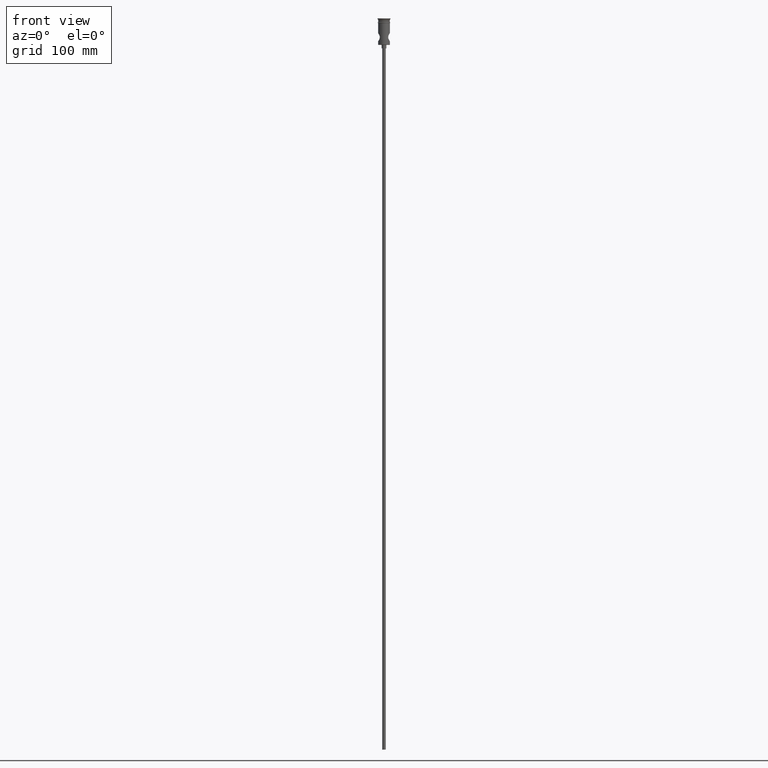
[diagram: clean part render]
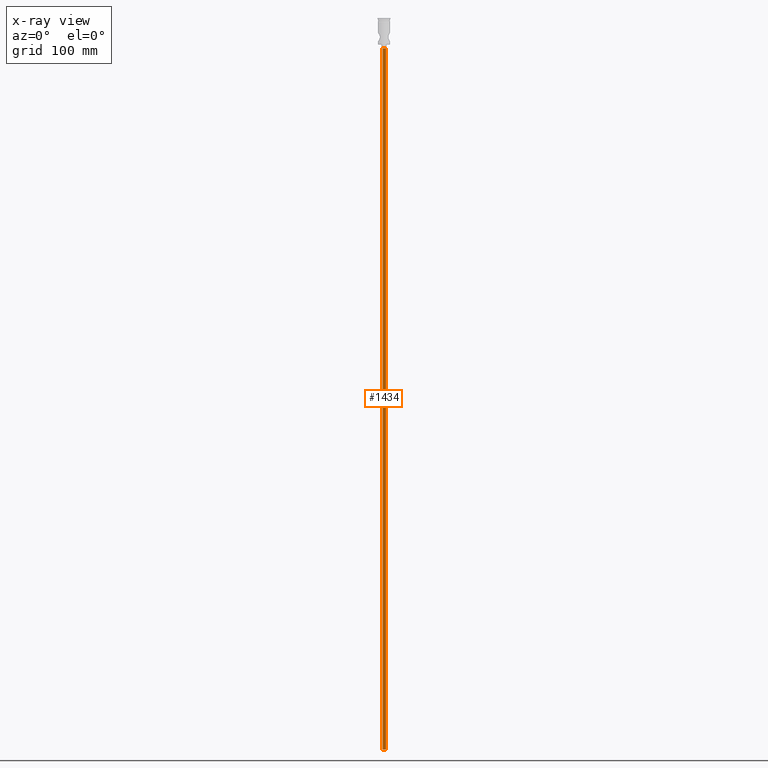
[diagram: x-ray — body ghosted, one internal face saturated and labeled with its STEP entity id]
A machine part, front view, then the same camera in x-ray: the body is ghosted and one INTERNAL B-rep face — a face not visible from any outside direction — is saturated and labeled: STEP entity #1434.
In plain terms, the highlighted cylindrical surface (edge-blend (fillet) strip) has radius 1.5 mm, axis along (-0, -0, 1).
Its self-contained STEP definition (entity closure, byte-faithful):
#10 = VECTOR ( 'NONE', #356, 1000.000000000000000 ) ;
#76 = ORIENTED_EDGE ( 'NONE', *, *, #539, .F. ) ;
#150 = EDGE_CURVE ( 'NONE', #643, #1300, #472, .T. ) ;
#155 = CARTESIAN_POINT ( 'NONE',  ( 0.000000000000000000, 0.000000000000000000, -622.4999999999998863 ) ) ;
#163 = CARTESIAN_POINT ( 'NONE',  ( -1.500000000000000222, 1.836970198721030181E-16, -622.4999999999998863 ) ) ;
#195 = AXIS2_PLACEMENT_3D ( 'NONE', #983, #631, #540 ) ;
#207 = ORIENTED_EDGE ( 'NONE', *, *, #1020, .T. ) ;
#224 = CARTESIAN_POINT ( 'NONE',  ( 1.500000000000000222, 0.000000000000000000, -622.4999999999998863 ) ) ;
#227 = EDGE_CURVE ( 'NONE', #643, #1051, #1150, .T. ) ;
#259 = CARTESIAN_POINT ( 'NONE',  ( 1.500000000000000222, 0.000000000000000000, -25.50000000000000000 ) ) ;
#266 = ORIENTED_EDGE ( 'NONE', *, *, #227, .T. ) ;
#300 = LINE ( 'NONE', #742, #10 ) ;
#356 = DIRECTION ( 'NONE',  ( -0.000000000000000000, -0.000000000000000000, 1.000000000000000000 ) ) ;
#396 = CARTESIAN_POINT ( 'NONE',  ( -1.500000000000000222, 1.836970198721030181E-16, -622.4999999999998863 ) ) ;
#472 = CIRCLE ( 'NONE', #1174, 1.500000000000000222 ) ;
#492 = DIRECTION ( 'NONE',  ( -0.000000000000000000, -0.000000000000000000, 1.000000000000000000 ) ) ;
#539 = EDGE_CURVE ( 'NONE', #1300, #1417, #300, .T. ) ;
#540 = DIRECTION ( 'NONE',  ( -1.000000000000000000, 0.000000000000000000, 0.000000000000000000 ) ) ;
#603 = DIRECTION ( 'NONE',  ( -0.000000000000000000, -0.000000000000000000, 1.000000000000000000 ) ) ;
#608 = DIRECTION ( 'NONE',  ( -1.000000000000000000, 0.000000000000000000, 0.000000000000000000 ) ) ;
#631 = DIRECTION ( 'NONE',  ( 0.000000000000000000, 0.000000000000000000, -1.000000000000000000 ) ) ;
#643 = VERTEX_POINT ( 'NONE', #163 ) ;
#718 = EDGE_LOOP ( 'NONE', ( #1327, #266, #207, #76 ) ) ;
#725 = FACE_OUTER_BOUND ( 'NONE', #718, .T. ) ;
#742 = CARTESIAN_POINT ( 'NONE',  ( 1.500000000000000222, 0.000000000000000000, -622.4999999999998863 ) ) ;
#827 = CIRCLE ( 'NONE', #195, 1.500000000000000222 ) ;
#890 = AXIS2_PLACEMENT_3D ( 'NONE', #1404, #492, #1396 ) ;
#953 = DIRECTION ( 'NONE',  ( 0.000000000000000000, 0.000000000000000000, -1.000000000000000000 ) ) ;
#983 = CARTESIAN_POINT ( 'NONE',  ( 0.000000000000000000, 0.000000000000000000, -25.50000000000000000 ) ) ;
#1020 = EDGE_CURVE ( 'NONE', #1051, #1417, #827, .T. ) ;
#1042 = CYLINDRICAL_SURFACE ( 'NONE', #890, 1.500000000000000222 ) ;
#1051 = VERTEX_POINT ( 'NONE', #1081 ) ;
#1081 = CARTESIAN_POINT ( 'NONE',  ( -1.500000000000000222, 1.836970198721030181E-16, -25.50000000000000000 ) ) ;
#1150 = LINE ( 'NONE', #396, #1214 ) ;
#1174 = AXIS2_PLACEMENT_3D ( 'NONE', #155, #953, #608 ) ;
#1214 = VECTOR ( 'NONE', #603, 1000.000000000000000 ) ;
#1300 = VERTEX_POINT ( 'NONE', #224 ) ;
#1327 = ORIENTED_EDGE ( 'NONE', *, *, #150, .F. ) ;
#1396 = DIRECTION ( 'NONE',  ( 1.000000000000000000, 0.000000000000000000, 0.000000000000000000 ) ) ;
#1404 = CARTESIAN_POINT ( 'NONE',  ( 0.000000000000000000, 0.000000000000000000, -622.4999999999998863 ) ) ;
#1417 = VERTEX_POINT ( 'NONE', #259 ) ;
#1434 = ADVANCED_FACE ( 'NONE', ( #725 ), #1042, .T. ) ;